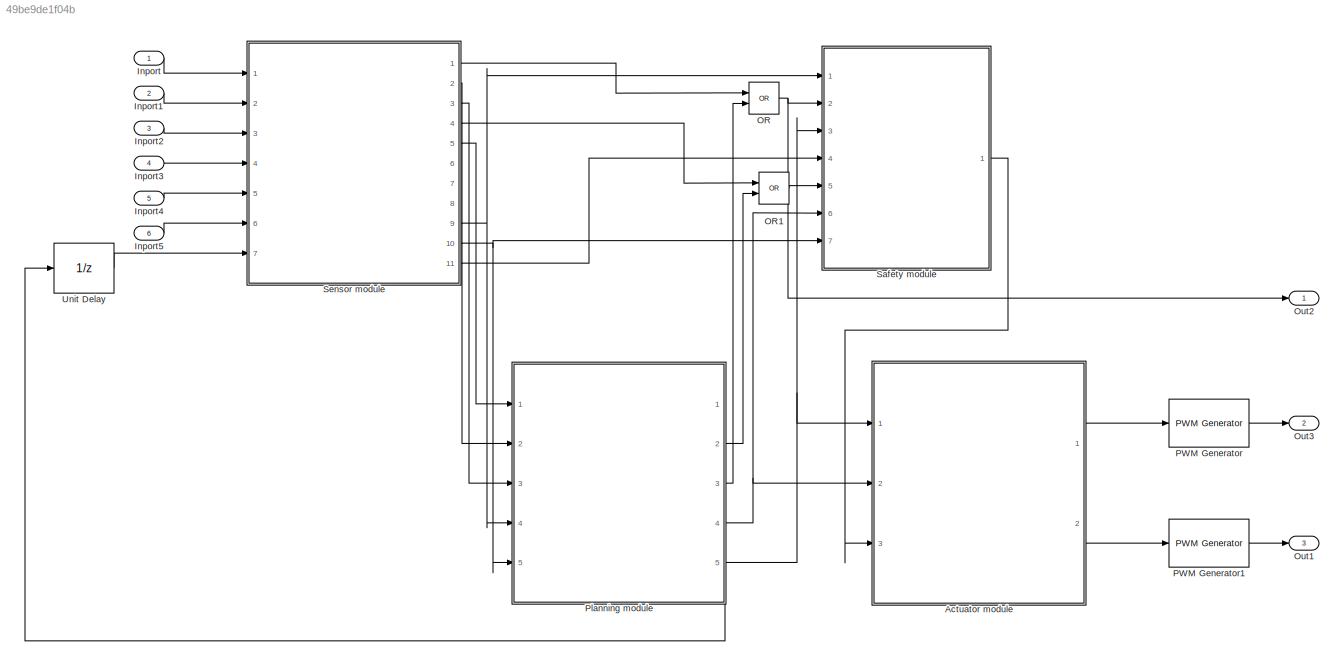
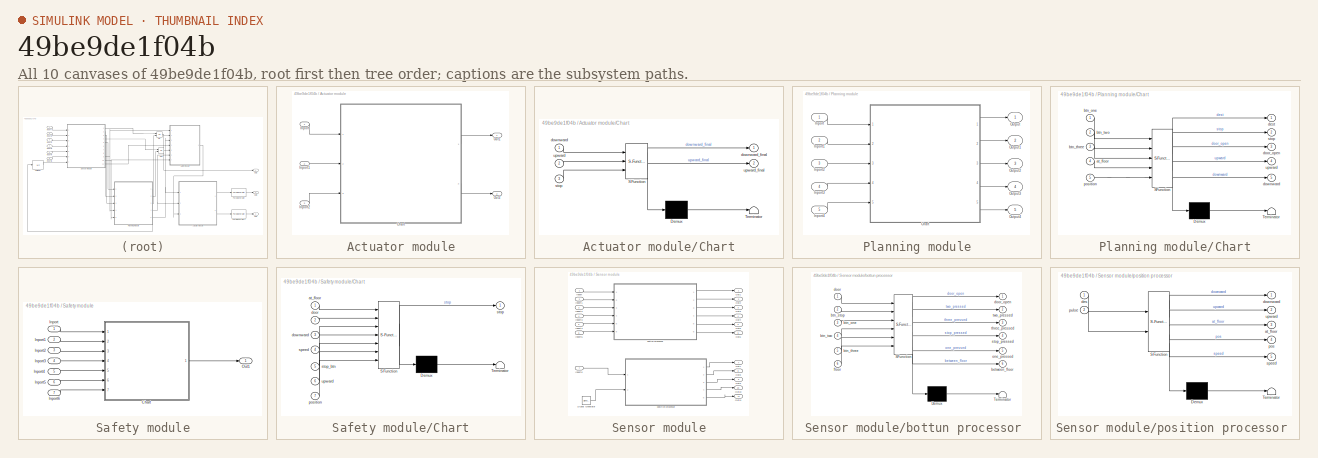
[diagram: thumbnail index - all 10 canvases of the model, root first then tree order]
MODEL slx_49be9de1f04b
KIND model
CONFIG AbsTol = auto
CONFIG EnableMultiTasking = on
CONFIG FixedStep = auto
CONFIG MaxStep = auto
CONFIG MinStep = auto
CONFIG RelTol = 1e-3
CONFIG SampleTimeConstraint = Unconstrained
CONFIG Solver = FixedStepAuto
CONFIG SolverName = FixedStepAuto
CONFIG StartTime = 0.0
CONFIG StopTime = 10.0
BLOCK [SubSystem] Actuator module
  Ports = [3, 2]
  RequestExecContextInheritance = off
BLOCK [SubSystem] Actuator module/Chart
  BlockKeywords = __PRM__SERIALIZED__DATA__:Stateflow Chart,Stateflow Diagram
  ErrorFcn = Stateflow.Translate.translate
  PermitHierarchicalResolution = ExplicitOnly
  Ports = [3, 2]
  RequestExecContextInheritance = off
  SFBlockType = Chart
  TreatAsAtomicUnit = on
BLOCK [Demux] Actuator module/Chart/ Demux 
  Outputs = 1
  Ports = [1, 1]
BLOCK [S-Function] Actuator module/Chart/ SFunction 
  EnableBusSupport = off
  FunctionName = sf_sfun
  PortCounts = [3 3]
  Ports = [3, 3]
  SFcnIsStateOwnerBlock = off
  SFunctionDeploymentMode = off
  Tag = Stateflow S-Function 5
BLOCK [Terminator] Actuator module/Chart/ Terminator 
BLOCK [Inport] Actuator module/Chart/downward
  IconDisplay = Port number
BLOCK [Outport] Actuator module/Chart/downward_final
  IconDisplay = Port number
BLOCK [Inport] Actuator module/Chart/stop
  IconDisplay = Port number
  Port = 3
BLOCK [Inport] Actuator module/Chart/upward
  IconDisplay = Port number
  Port = 2
BLOCK [Outport] Actuator module/Chart/upward_final
  IconDisplay = Port number
  Port = 2
BLOCK [Inport] Actuator module/Inport
  IconDisplay = Port number
BLOCK [Inport] Actuator module/Inport1
  IconDisplay = Port number
  Port = 2
BLOCK [Inport] Actuator module/Inport2
  IconDisplay = Port number
  Port = 3
BLOCK [Outport] Actuator module/Out1
  IconDisplay = Port number
BLOCK [Outport] Actuator module/Out2
  IconDisplay = Port number
  Port = 2
BLOCK [Inport] Inport
  IconDisplay = Port number
BLOCK [Inport] Inport1
  IconDisplay = Port number
  Port = 2
BLOCK [Inport] Inport2
  IconDisplay = Port number
  Port = 3
BLOCK [Inport] Inport3
  IconDisplay = Port number
  Port = 4
BLOCK [Inport] Inport4
  IconDisplay = Port number
  Port = 5
BLOCK [Inport] Inport5
  IconDisplay = Port number
  Port = 6
BLOCK [Logic] OR
  AllPortsSameDT = off
  IconShape = distinctive
  Operator = OR
  OutDataTypeStr = boolean
  Ports = [2, 1]
BLOCK [Logic] OR1
  AllPortsSameDT = off
  IconShape = distinctive
  Operator = OR
  OutDataTypeStr = boolean
  Ports = [2, 1]
BLOCK [Outport] Out1
  IconDisplay = Port number
  Port = 3
BLOCK [Outport] Out2
  IconDisplay = Port number
BLOCK [Outport] Out3
  IconDisplay = Port number
  Port = 2
BLOCK [Reference] PWM Generator  REF=eePwmGenerator/PWM Generator
  Ports = [1, 1]
  SourceBlock = eePwmGenerator/PWM Generator
  SourceProductBaseCode = PS
  SourceProductName = Simscape Electrical
  SourceType = PWM Generator
BLOCK [Reference] PWM Generator1  REF=eePwmGenerator/PWM Generator
  Ports = [1, 1]
  SourceBlock = eePwmGenerator/PWM Generator
  SourceProductBaseCode = PS
  SourceProductName = Simscape Electrical
  SourceType = PWM Generator
BLOCK [SubSystem] Planning module
  Ports = [5, 5]
  RequestExecContextInheritance = off
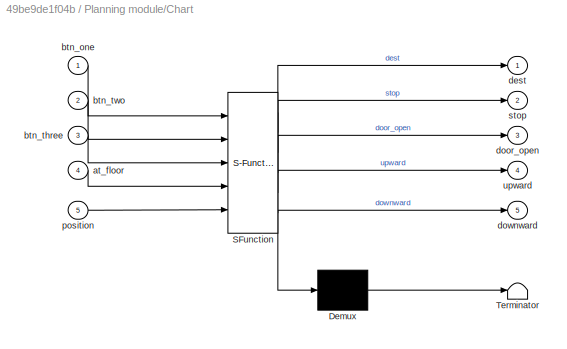
BLOCK [SubSystem] Planning module/Chart
  BlockKeywords = __PRM__SERIALIZED__DATA__:Stateflow Chart,Stateflow Diagram
  ErrorFcn = Stateflow.Translate.translate
  PermitHierarchicalResolution = ExplicitOnly
  Ports = [5, 5]
  RequestExecContextInheritance = off
  SFBlockType = Chart
  TreatAsAtomicUnit = on
BLOCK [Demux] Planning module/Chart/ Demux 
  Outputs = 1
  Ports = [1, 1]
BLOCK [S-Function] Planning module/Chart/ SFunction 
  EnableBusSupport = on
  FunctionName = sf_sfun
  PortCounts = [5 6]
  Ports = [5, 6]
  SFcnIsStateOwnerBlock = off
  SFunctionDeploymentMode = off
  Tag = Stateflow S-Function 4
BLOCK [Terminator] Planning module/Chart/ Terminator 
BLOCK [Inport] Planning module/Chart/at_floor
  IconDisplay = Port number
  Port = 4
BLOCK [Inport] Planning module/Chart/btn_one
  IconDisplay = Port number
BLOCK [Inport] Planning module/Chart/btn_three
  IconDisplay = Port number
  Port = 3
BLOCK [Inport] Planning module/Chart/btn_two
  IconDisplay = Port number
  Port = 2
BLOCK [Outport] Planning module/Chart/dest
  IconDisplay = Port number
BLOCK [Outport] Planning module/Chart/door_open
  IconDisplay = Port number
  Port = 3
BLOCK [Outport] Planning module/Chart/downward
  IconDisplay = Port number
  Port = 5
BLOCK [Inport] Planning module/Chart/position
  IconDisplay = Port number
  Port = 5
BLOCK [Outport] Planning module/Chart/stop
  IconDisplay = Port number
  Port = 2
BLOCK [Outport] Planning module/Chart/upward
  IconDisplay = Port number
  Port = 4
BLOCK [Inport] Planning module/Inport
  IconDisplay = Port number
BLOCK [Inport] Planning module/Inport1
  IconDisplay = Port number
  Port = 2
BLOCK [Inport] Planning module/Inport2
  IconDisplay = Port number
  Port = 3
BLOCK [Inport] Planning module/Inport3
  IconDisplay = Port number
  Port = 4
BLOCK [Inport] Planning module/Inport4
  IconDisplay = Port number
  Port = 5
BLOCK [Outport] Planning module/Output
  IconDisplay = Port number
BLOCK [Outport] Planning module/Output1
  IconDisplay = Port number
  Port = 2
BLOCK [Outport] Planning module/Output2
  IconDisplay = Port number
  Port = 3
BLOCK [Outport] Planning module/Output3
  IconDisplay = Port number
  Port = 4
BLOCK [Outport] Planning module/Output4
  IconDisplay = Port number
  Port = 5
BLOCK [SubSystem] Safety module
  Ports = [7, 1]
  RequestExecContextInheritance = off
BLOCK [SubSystem] Safety module/Chart
  ErrorFcn = Stateflow.Translate.translate
  PermitHierarchicalResolution = ExplicitOnly
  Ports = [7, 1]
  RequestExecContextInheritance = off
  SFBlockType = Chart
  TreatAsAtomicUnit = on
BLOCK [Demux] Safety module/Chart/ Demux 
  Outputs = 1
  Ports = [1, 1]
BLOCK [S-Function] Safety module/Chart/ SFunction 
  EnableBusSupport = on
  FunctionName = sf_sfun
  PortCounts = [7 2]
  Ports = [7, 2]
  SFcnIsStateOwnerBlock = off
  SFunctionDeploymentMode = off
  Tag = Stateflow S-Function 2
BLOCK [Terminator] Safety module/Chart/ Terminator 
BLOCK [Inport] Safety module/Chart/at_floor
  IconDisplay = Port number
BLOCK [Inport] Safety module/Chart/door
  IconDisplay = Port number
  Port = 2
BLOCK [Inport] Safety module/Chart/downward
  IconDisplay = Port number
  Port = 3
BLOCK [Inport] Safety module/Chart/position
  IconDisplay = Port number
  Port = 7
BLOCK [Inport] Safety module/Chart/speed
  IconDisplay = Port number
  Port = 4
BLOCK [Outport] Safety module/Chart/stop
  IconDisplay = Port number
  VectorParamsAs1DForOutWhenUnconnected = off
BLOCK [Inport] Safety module/Chart/stop_btn
  IconDisplay = Port number
  Port = 5
BLOCK [Inport] Safety module/Chart/upward
  IconDisplay = Port number
  Port = 6
BLOCK [Inport] Safety module/Inport
  IconDisplay = Port number
BLOCK [Inport] Safety module/Inport1
  IconDisplay = Port number
  Port = 2
BLOCK [Inport] Safety module/Inport2
  IconDisplay = Port number
  Port = 3
BLOCK [Inport] Safety module/Inport3
  IconDisplay = Port number
  Port = 4
BLOCK [Inport] Safety module/Inport4
  IconDisplay = Port number
  Port = 5
BLOCK [Inport] Safety module/Inport5
  IconDisplay = Port number
  Port = 6
BLOCK [Inport] Safety module/Inport6
  IconDisplay = Port number
  Port = 7
BLOCK [Outport] Safety module/Out1
  IconDisplay = Port number
  VectorParamsAs1DForOutWhenUnconnected = off
BLOCK [SubSystem] Sensor module
  Ports = [7, 11]
  RequestExecContextInheritance = off
BLOCK [Inport] Sensor module/Inport
  IconDisplay = Port number
BLOCK [Inport] Sensor module/Inport1
  IconDisplay = Port number
  Port = 2
BLOCK [Inport] Sensor module/Inport2
  IconDisplay = Port number
  Port = 3
BLOCK [Inport] Sensor module/Inport3
  IconDisplay = Port number
  Port = 4
BLOCK [Inport] Sensor module/Inport4
  IconDisplay = Port number
  Port = 5
BLOCK [Inport] Sensor module/Inport5
  IconDisplay = Port number
  Port = 6
BLOCK [Inport] Sensor module/Inport6
  IconDisplay = Port number
  Port = 7
BLOCK [Outport] Sensor module/Out1
  IconDisplay = Port number
  VectorParamsAs1DForOutWhenUnconnected = off
BLOCK [Outport] Sensor module/Out10
  IconDisplay = Port number
  Port = 10
  VectorParamsAs1DForOutWhenUnconnected = off
BLOCK [Outport] Sensor module/Out11
  IconDisplay = Port number
  Port = 11
  VectorParamsAs1DForOutWhenUnconnected = off
BLOCK [Outport] Sensor module/Out2
  IconDisplay = Port number
  Port = 2
  VectorParamsAs1DForOutWhenUnconnected = off
BLOCK [Outport] Sensor module/Out3
  IconDisplay = Port number
  Port = 3
  VectorParamsAs1DForOutWhenUnconnected = off
BLOCK [Outport] Sensor module/Out4
  IconDisplay = Port number
  Port = 4
  VectorParamsAs1DForOutWhenUnconnected = off
BLOCK [Outport] Sensor module/Out5
  IconDisplay = Port number
  Port = 5
  VectorParamsAs1DForOutWhenUnconnected = off
BLOCK [Outport] Sensor module/Out6
  IconDisplay = Port number
  Port = 6
  VectorParamsAs1DForOutWhenUnconnected = off
BLOCK [Outport] Sensor module/Out7
  IconDisplay = Port number
  Port = 7
  VectorParamsAs1DForOutWhenUnconnected = off
BLOCK [Outport] Sensor module/Out8
  IconDisplay = Port number
  Port = 8
  VectorParamsAs1DForOutWhenUnconnected = off
BLOCK [Outport] Sensor module/Out9
  IconDisplay = Port number
  Port = 9
  VectorParamsAs1DForOutWhenUnconnected = off
BLOCK [SignalGenerator] Sensor module/Signal Generator
  Ports = [0, 1]
  Units = rad/sec
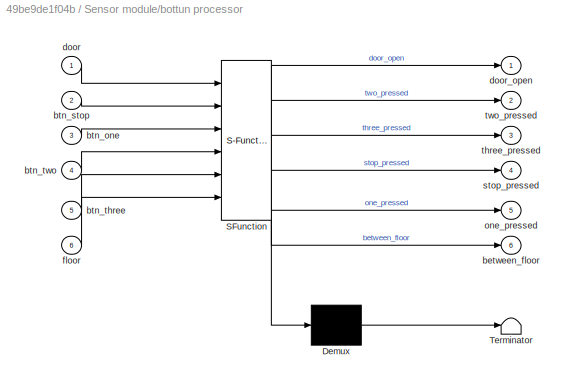
BLOCK [SubSystem] Sensor module/bottun processor 
  ErrorFcn = Stateflow.Translate.translate
  PermitHierarchicalResolution = ExplicitOnly
  Ports = [6, 6]
  RequestExecContextInheritance = off
  SFBlockType = Chart
  TreatAsAtomicUnit = on
BLOCK [Demux] Sensor module/bottun processor / Demux 
  Outputs = 1
  Ports = [1, 1]
BLOCK [S-Function] Sensor module/bottun processor / SFunction 
  EnableBusSupport = on
  FunctionName = sf_sfun
  PortCounts = [6 7]
  Ports = [6, 7]
  SFcnIsStateOwnerBlock = off
  SFunctionDeploymentMode = off
  Tag = Stateflow S-Function 3
BLOCK [Terminator] Sensor module/bottun processor / Terminator 
BLOCK [Outport] Sensor module/bottun processor /between_floor
  IconDisplay = Port number
  Port = 6
  VectorParamsAs1DForOutWhenUnconnected = off
BLOCK [Inport] Sensor module/bottun processor /btn_one
  IconDisplay = Port number
  Port = 3
BLOCK [Inport] Sensor module/bottun processor /btn_stop
  IconDisplay = Port number
  Port = 2
BLOCK [Inport] Sensor module/bottun processor /btn_three
  IconDisplay = Port number
  Port = 5
BLOCK [Inport] Sensor module/bottun processor /btn_two
  IconDisplay = Port number
  Port = 4
BLOCK [Inport] Sensor module/bottun processor /door
  IconDisplay = Port number
BLOCK [Outport] Sensor module/bottun processor /door_open
  IconDisplay = Port number
  VectorParamsAs1DForOutWhenUnconnected = off
BLOCK [Inport] Sensor module/bottun processor /floor
  IconDisplay = Port number
  Port = 6
BLOCK [Outport] Sensor module/bottun processor /one_pressed
  IconDisplay = Port number
  Port = 5
  VectorParamsAs1DForOutWhenUnconnected = off
BLOCK [Outport] Sensor module/bottun processor /stop_pressed
  IconDisplay = Port number
  Port = 4
  VectorParamsAs1DForOutWhenUnconnected = off
BLOCK [Outport] Sensor module/bottun processor /three_pressed
  IconDisplay = Port number
  Port = 3
  VectorParamsAs1DForOutWhenUnconnected = off
BLOCK [Outport] Sensor module/bottun processor /two_pressed
  IconDisplay = Port number
  Port = 2
  VectorParamsAs1DForOutWhenUnconnected = off
BLOCK [SubSystem] Sensor module/position processor 
  ErrorFcn = Stateflow.Translate.translate
  PermitHierarchicalResolution = ExplicitOnly
  Ports = [2, 5]
  RequestExecContextInheritance = off
  SFBlockType = Chart
  TreatAsAtomicUnit = on
BLOCK [Demux] Sensor module/position processor / Demux 
  Outputs = 1
  Ports = [1, 1]
BLOCK [S-Function] Sensor module/position processor / SFunction 
  EnableBusSupport = on
  FunctionName = sf_sfun
  PortCounts = [2 6]
  Ports = [2, 6]
  SFcnIsStateOwnerBlock = off
  SFunctionDeploymentMode = off
  Tag = Stateflow S-Function 1
BLOCK [Terminator] Sensor module/position processor / Terminator 
BLOCK [Outport] Sensor module/position processor /at_floor
  IconDisplay = Port number
  Port = 3
  VectorParamsAs1DForOutWhenUnconnected = off
BLOCK [Inport] Sensor module/position processor /des
  IconDisplay = Port number
BLOCK [Outport] Sensor module/position processor /downward
  IconDisplay = Port number
  VectorParamsAs1DForOutWhenUnconnected = off
BLOCK [Outport] Sensor module/position processor /pos
  IconDisplay = Port number
  Port = 4
  VectorParamsAs1DForOutWhenUnconnected = off
BLOCK [Inport] Sensor module/position processor /pulse
  IconDisplay = Port number
  Port = 2
BLOCK [Outport] Sensor module/position processor /speed
  IconDisplay = Port number
  Port = 5
  VectorParamsAs1DForOutWhenUnconnected = off
BLOCK [Outport] Sensor module/position processor /upward
  IconDisplay = Port number
  Port = 2
  VectorParamsAs1DForOutWhenUnconnected = off
BLOCK [UnitDelay] Unit Delay
  HasFrameUpgradeWarning = on
  SampleTime = -1
LINE Actuator module/Chart:1 -> Actuator module/Out1:1
LINE Actuator module/Chart:2 -> Actuator module/Out2:1
LINE Actuator module/Inport1:1 -> Actuator module/Chart:2
LINE Actuator module/Inport2:1 -> Actuator module/Chart:3
LINE Actuator module/Inport:1 -> Actuator module/Chart:1
LINE Actuator module:1 -> PWM Generator:1
LINE Actuator module:2 -> PWM Generator1:1
LINE Inport1:1 -> Sensor module:2
LINE Inport2:1 -> Sensor module:3
LINE Inport3:1 -> Sensor module:4
LINE Inport4:1 -> Sensor module:5
LINE Inport5:1 -> Sensor module:6
LINE Inport:1 -> Sensor module:1
LINE OR1:1 -> Safety module:5
NET OR:1 -> Out2:1, Safety module:2
LINE PWM Generator1:1 -> Out1:1
LINE PWM Generator:1 -> Out3:1
LINE Planning module/Chart:1 -> Planning module/Output:1
LINE Planning module/Chart:2 -> Planning module/Output1:1
LINE Planning module/Chart:3 -> Planning module/Output2:1
LINE Planning module/Chart:4 -> Planning module/Output3:1
LINE Planning module/Chart:5 -> Planning module/Output4:1
LINE Planning module/Inport1:1 -> Planning module/Chart:2
LINE Planning module/Inport2:1 -> Planning module/Chart:3
LINE Planning module/Inport3:1 -> Planning module/Chart:4
LINE Planning module/Inport4:1 -> Planning module/Chart:5
LINE Planning module/Inport:1 -> Planning module/Chart:1
LINE Planning module:1 -> Unit Delay:1
LINE Planning module:2 -> OR1:2
LINE Planning module:3 -> OR:2
NET Planning module:4 -> Actuator module:2, Safety module:6
NET Planning module:5 -> Actuator module:1, Safety module:3
LINE Safety module/Chart:1 -> Safety module/Out1:1
LINE Safety module/Inport1:1 -> Safety module/Chart:2
LINE Safety module/Inport2:1 -> Safety module/Chart:3
LINE Safety module/Inport3:1 -> Safety module/Chart:4
LINE Safety module/Inport4:1 -> Safety module/Chart:5
LINE Safety module/Inport5:1 -> Safety module/Chart:6
LINE Safety module/Inport6:1 -> Safety module/Chart:7
LINE Safety module/Inport:1 -> Safety module/Chart:1
LINE Safety module:1 -> Actuator module:3
LINE Sensor module/Inport1:1 -> Sensor module/bottun processor :2
LINE Sensor module/Inport2:1 -> Sensor module/bottun processor :3
LINE Sensor module/Inport3:1 -> Sensor module/bottun processor :4
LINE Sensor module/Inport4:1 -> Sensor module/bottun processor :5
LINE Sensor module/Inport5:1 -> Sensor module/bottun processor :6
LINE Sensor module/Inport6:1 -> Sensor module/position processor :1
LINE Sensor module/Inport:1 -> Sensor module/bottun processor :1
LINE Sensor module/Signal Generator:1 -> Sensor module/position processor :2
LINE Sensor module/bottun processor :1 -> Sensor module/Out1:1
LINE Sensor module/bottun processor :2 -> Sensor module/Out2:1
LINE Sensor module/bottun processor :3 -> Sensor module/Out3:1
LINE Sensor module/bottun processor :4 -> Sensor module/Out4:1
LINE Sensor module/bottun processor :5 -> Sensor module/Out5:1
LINE Sensor module/bottun processor :6 -> Sensor module/Out6:1
LINE Sensor module/position processor :1 -> Sensor module/Out7:1
LINE Sensor module/position processor :2 -> Sensor module/Out8:1
LINE Sensor module/position processor :3 -> Sensor module/Out9:1
LINE Sensor module/position processor :4 -> Sensor module/Out10:1
LINE Sensor module/position processor :5 -> Sensor module/Out11:1
LINE Sensor module:1 -> OR:1
NET Sensor module:10 -> Planning module:5, Safety module:7
LINE Sensor module:11 -> Safety module:4
LINE Sensor module:2 -> Planning module:2
LINE Sensor module:3 -> Planning module:3
LINE Sensor module:4 -> OR1:1
LINE Sensor module:5 -> Planning module:1
NET Sensor module:9 -> Planning module:4, Safety module:1
LINE Unit Delay:1 -> Sensor module:7
note: NET lines group one-source signal fan-out (src -> all destinations, sorted); 1:1 wires keep LINE
CHART Sensor module/position processor
 states=12 transitions=18
  STATE_LABEL 'pos_detection'
  STATE_LABEL 'speed_cal'
  STATE_LABEL 'speed_at_1\nentry:\nspeed = (pos  - last_counter);\nlast_counter = pos;\n'
  STATE_LABEL '[after(1,sec)]'
  STATE_LABEL 'pos_cal'
  STATE_LABEL 'floor_1\nentry:\ncounter = 0;\nat_floor = 1;\npos = 0;\nduring:\nupward = 0;\ndownward = 0;\n'
  STATE_LABEL 'floor_3\nentry:\ncounter = 0;\nat_floor = 3;\npos = 800;\nduring:\nupward = 0;\ndownward = 0;'
  STATE_LABEL 'between_1_2\nentry:\nat_floor = -1;\npos = (upward)*(counter) + (downward)*(400 - counter)\nexit:\n'
  STATE_LABEL 'between_2_3\nentry:\nat_floor = -1;\npos = (upward)*(counter+400) + (downward)*(800 - counter)'
  STATE_LABEL 'read_pulse_2_3\nentry:\ncounter = counter+1\nlast = pulse;\n'
  STATE_LABEL 'read_pulse_1_2\nentry:\ncounter = counter+1\nlast = pulse'
  STATE_LABEL 'floor_2\nentry:\ncounter = 0;\nat_floor = 2;\npos  = 400;\nduring:\nupward = 0;\ndownward = 0;'
  STATE_LABEL '[counter == 400 && downward == 1]'
  STATE_LABEL '[counter == 400 && upward == 1]'
  STATE_LABEL '[des == 2 || des == 3]{upward = 1;downward = 0}'
  STATE_LABEL '[des == 2 || des == 1]{upward = 0 ; downward = 1}'
  STATE_LABEL '[after(3,msec)&&last == pulse]'
  STATE_LABEL '[counter ~= 400]'
  STATE_LABEL '[des == 3]{upward = 1; downward = 0}'
  STATE_LABEL '[counter ~= 400]'
  STATE_LABEL '[after(3,msec)&& last ~= pulse]'
  STATE_LABEL '[after(3,msec)&& last ~= pulse]'
  STATE_LABEL '[des == 1]{upward = 0;downward =1;}'
  STATE_LABEL '[counter == 400 && downward == 1]'
  STATE_LABEL '[counter == 400 && upward == 1]'
  STATE_LABEL 'H'
  STATE_LABEL 'speed_cal'
  STATE_LABEL 'speed_at_1\nentry:\nspeed = (pos  - last_counter);\nlast_counter = pos;\n'
  STATE_LABEL '[after(1,sec)]'
  STATE_LABEL 'speed_at_1\nentry:\nspeed = (pos  - last_counter);\nlast_counter = pos;\n'
  STATE_LABEL 'pos_cal'
  STATE_LABEL 'floor_1\nentry:\ncounter = 0;\nat_floor = 1;\npos = 0;\nduring:\nupward = 0;\ndownward = 0;\n'
  STATE_LABEL 'floor_3\nentry:\ncounter = 0;\nat_floor = 3;\npos = 800;\nduring:\nupward = 0;\ndownward = 0;'
  STATE_LABEL 'between_1_2\nentry:\nat_floor = -1;\npos = (upward)*(counter) + (downward)*(400 - counter)\nexit:\n'
  STATE_LABEL 'between_2_3\nentry:\nat_floor = -1;\npos = (upward)*(counter+400) + (downward)*(800 - counter)'
  STATE_LABEL 'read_pulse_2_3\nentry:\ncounter = counter+1\nlast = pulse;\n'
  STATE_LABEL 'read_pulse_1_2\nentry:\ncounter = counter+1\nlast = pulse'
  STATE_LABEL 'floor_2\nentry:\ncounter = 0;\nat_floor = 2;\npos  = 400;\nduring:\nupward = 0;\ndownward = 0;'
  STATE_LABEL '[counter == 400 && downward == 1]'
  STATE_LABEL '[counter == 400 && upward == 1]'
CHART Safety module/Chart states=7 transitions=19
  STATE_LABEL 'down_stop\nentry :\nstop = 1;'
  STATE_LABEL 'both_dir_stop\nentry:\nstop = 1;'
  STATE_LABEL 'monitor\nduring:\nstop = 0;\n'
  STATE_LABEL 'door_stop\nentry :\nstop = 1;'
  STATE_LABEL 'stop_button\nentry :\nstop = 1;'
  STATE_LABEL 'speed_stop\nentry :\nstop = 1;'
  STATE_LABEL 'top_stop\nentry :\nstop = 1;'
CHART Sensor module/bottun processor
 states=13 transitions=25
  STATE_LABEL 'Reset\nentry:\none_pressed = 0;\ntwo_pressed = 0;\nthree_pressed = 0;\ndoor_open = 0;\nstop_pressed = 0;'
  STATE_LABEL 'two_bounce'
  STATE_LABEL 'three_bounce'
  STATE_LABEL 'stop_bounce'
  STATE_LABEL 'one_bounce'
  STATE_LABEL 'door_bounce'
  STATE_LABEL 'floor_bounce'
  STATE_LABEL 'floor_pos\nentry :\nbetween_floor = 1;'
  STATE_LABEL 'two_press\nentry:\ntwo_pressed = 1;'
  STATE_LABEL 'stop_press\nentry:\nstop_pressed =1 ;'
  STATE_LABEL 'three_press\nentry:\nthree_pressed = 1;'
  STATE_LABEL 'door_status\nentry:\ndoor_open = 1;'
  STATE_LABEL 'one_press\nentry:\none_pressed = 1;'
CHART Planning module/Chart states=10 transitions=22
  STATE_LABEL 'planning_cal'
  STATE_LABEL 'plan_handle'
  STATE_LABEL 'floor1\nentry:\none_pressed = 0;\ndoor_open = 1;\nstop = 1;'
  STATE_LABEL 'floor3\nentry:\nthree_pressed = 0;\ndoor_open = 1;\nstop = 1;'
  STATE_LABEL 'move_up\nentry:\ndoor_open = 0;\nstop = 0;\nupward = 1;\ndownward = 0;'
  STATE_LABEL 'move_down\nentry:\ndoor_open = 0;\nstop = 0;\nupward = 0;\ndownward = 1;'
  STATE_LABEL 'floor2\nentry:\ntwo_pressed = 0;\ndoor_open = 1;\nstop = 1;'
  STATE_LABEL '[one_pressed == 1]'
  STATE_LABEL '[after(5, sec) && two_pressed == 1]{dest = 2; two_open = 1}'
  STATE_LABEL '[one_pressed == 1 && at_floor == 1]'
  STATE_LABEL '[after(5, sec) && two_pressed == 0 && three_pressed == 1]{dest = 3; two_open = 0}'
  STATE_LABEL '[three_pressed == 1]'
  STATE_LABEL '[two_pressed == 1 && two_open == 0 && position <= 200]{two_open = 1; dest = 2}'
  STATE_LABEL '[three_pressed == 1 && at_floor == 3]'
  STATE_LABEL '[after(5, sec) && two_pressed == 0 && one_pressed == 1]{dest = 1; two_open = 0}'
  STATE_LABEL '[after(5, sec) && two_pressed == 1]{dest = 2; two_open = 1}'
  STATE_LABEL '[after(5, sec) && three_pressed == 1]{dest = 3}'
  STATE_LABEL '[at_floor == 2 && two_pressed == 1 && two_open == 1]'
  STATE_LABEL '[two_pressed == 1]'
  STATE_LABEL '[at_floor == 2 && two_pressed == 1 && two_open == 1]'
  STATE_LABEL '[two_pressed == 1 && two_open == 0 && position >= 600]{two_open = 1; dest = 2}'
  STATE_LABEL '[after(5, sec) && one_pressed == 1]{dest = 1}'
  STATE_LABEL 'btn_handle'
  STATE_LABEL 'btn_handle'
  STATE_LABEL '[btn_two == 1]{two_pressed = 1}'
  STATE_LABEL '[btn_one == 1]{one_pressed = 1}'
  STATE_LABEL '[btn_three == 1]{three_pressed = 1}'
  STATE_LABEL 'plan_handle'
  STATE_LABEL 'floor1\nentry:\none_pressed = 0;\ndoor_open = 1;\nstop = 1;'
  STATE_LABEL 'floor3\nentry:\nthree_pressed = 0;\ndoor_open = 1;\nstop = 1;'
  STATE_LABEL 'move_up\nentry:\ndoor_open = 0;\nstop = 0;\nupward = 1;\ndownward = 0;'
  STATE_LABEL 'move_down\nentry:\ndoor_open = 0;\nstop = 0;\nupward = 0;\ndownward = 1;'
  STATE_LABEL 'floor2\nentry:\ntwo_pressed = 0;\ndoor_open = 1;\nstop = 1;'
  STATE_LABEL '[one_pressed == 1]'
  STATE_LABEL '[after(5, sec) && two_pressed == 1]{dest = 2; two_open = 1}'
  STATE_LABEL '[one_pressed == 1 && at_floor == 1]'
  STATE_LABEL '[after(5, sec) && two_pressed == 0 && three_pressed == 1]{dest = 3; two_open = 0}'
  STATE_LABEL '[three_pressed == 1]'
  STATE_LABEL '[two_pressed == 1 && two_open == 0 && position <= 200]{two_open = 1; dest = 2}'
  STATE_LABEL '[three_pressed == 1 && at_floor == 3]'
CHART Actuator module/Chart states=2 transitions=3
  STATE_LABEL 'stop\nentry:\nupward_final = 0;\ndownward_final = 0;'
  STATE_LABEL 'move\nentry:\nupward_final = upward*0.5;\ndownward_final = downward*0.5;'
